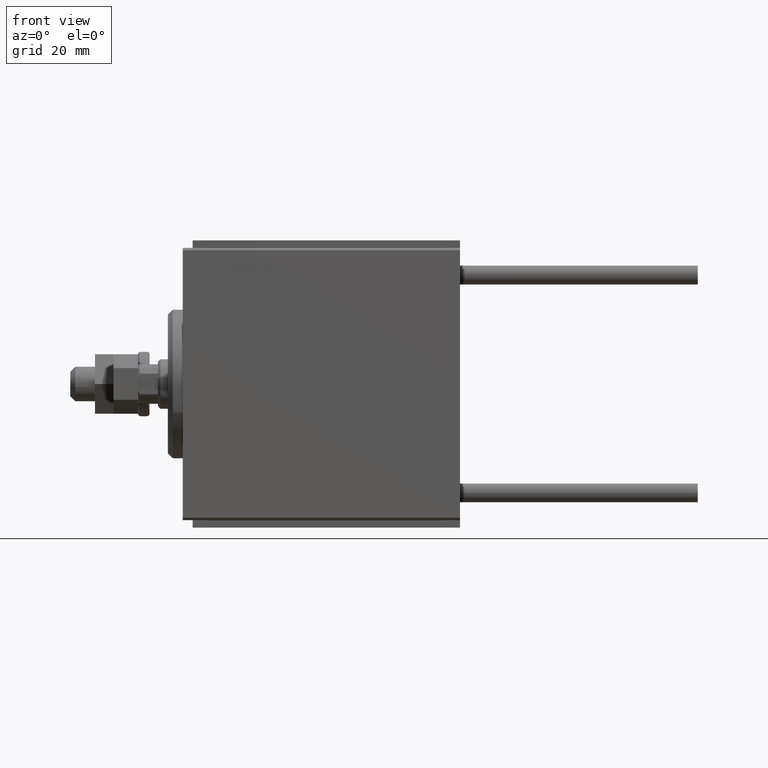
[diagram: clean part render]
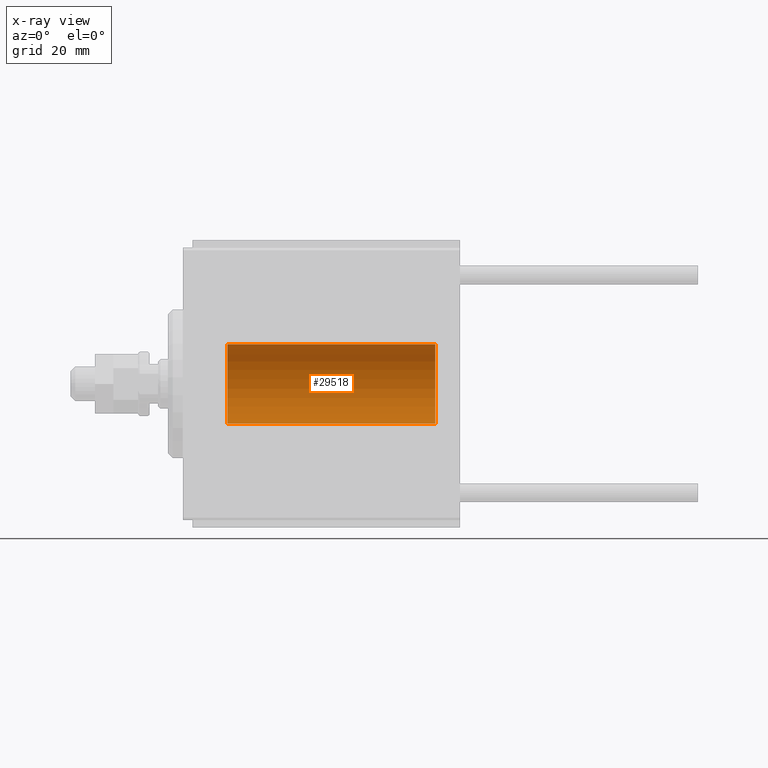
[diagram: x-ray — body ghosted, one internal face saturated and labeled with its STEP entity id]
A machine part, front view, then the same camera in x-ray: the body is ghosted and one INTERNAL B-rep face — a face not visible from any outside direction — is saturated and labeled: STEP entity #29518.
In plain terms, the highlighted cylindrical surface (partial cylindrical patch) has radius 8 mm, axis along (-1, -0, -0).
Its self-contained STEP definition (entity closure, byte-faithful):
#1079 = CARTESIAN_POINT ( 'NONE',  ( 51.00000000000000000, 0.000000000000000000, 0.000000000000000000 ) ) ;
#2206 = DIRECTION ( 'NONE',  ( -1.000000000000000000, -0.000000000000000000, -0.000000000000000000 ) ) ;
#3121 = AXIS2_PLACEMENT_3D ( 'NONE', #28046, #19917, #15869 ) ;
#3944 = CIRCLE ( 'NONE', #3121, 7.999999999999998224 ) ;
#7300 = ORIENTED_EDGE ( 'NONE', *, *, #49133, .F. ) ;
#8465 = FACE_OUTER_BOUND ( 'NONE', #44470, .T. ) ;
#9256 = CARTESIAN_POINT ( 'NONE',  ( 51.00000000000000000, 9.797174393178823685E-16, -7.999999999999998224 ) ) ;
#11280 = VECTOR ( 'NONE', #2206, 1000.000000000000000 ) ;
#11738 = CARTESIAN_POINT ( 'NONE',  ( 51.00000000000000000, 9.797174393178823685E-16, -7.999999999999998224 ) ) ;
#12274 = CYLINDRICAL_SURFACE ( 'NONE', #33010, 7.999999999999998224 ) ;
#12548 = DIRECTION ( 'NONE',  ( -1.000000000000000000, -0.000000000000000000, -0.000000000000000000 ) ) ;
#14824 = VERTEX_POINT ( 'NONE', #50093 ) ;
#15869 = DIRECTION ( 'NONE',  ( 0.000000000000000000, 0.000000000000000000, 1.000000000000000000 ) ) ;
#18187 = LINE ( 'NONE', #25296, #11280 ) ;
#19917 = DIRECTION ( 'NONE',  ( -1.000000000000000000, 0.000000000000000000, 0.000000000000000000 ) ) ;
#22483 = DIRECTION ( 'NONE',  ( -1.000000000000000000, 0.000000000000000000, 0.000000000000000000 ) ) ;
#24231 = CARTESIAN_POINT ( 'NONE',  ( 9.000000000000001776, 9.797174393178823685E-16, -7.999999999999998224 ) ) ;
#24366 = VERTEX_POINT ( 'NONE', #28724 ) ;
#25296 = CARTESIAN_POINT ( 'NONE',  ( 51.00000000000000000, 0.000000000000000000, 7.999999999999998224 ) ) ;
#28046 = CARTESIAN_POINT ( 'NONE',  ( 9.000000000000001776, 0.000000000000000000, 0.000000000000000000 ) ) ;
#28724 = CARTESIAN_POINT ( 'NONE',  ( 9.000000000000001776, 0.000000000000000000, 7.999999999999998224 ) ) ;
#29518 = ADVANCED_FACE ( 'NONE', ( #8465 ), #12274, .F. ) ;
#30457 = EDGE_CURVE ( 'NONE', #14824, #35243, #33840, .T. ) ;
#30734 = VECTOR ( 'NONE', #12548, 1000.000000000000000 ) ;
#31831 = LINE ( 'NONE', #9256, #30734 ) ;
#33010 = AXIS2_PLACEMENT_3D ( 'NONE', #1079, #35603, #39892 ) ;
#33840 = CIRCLE ( 'NONE', #42752, 7.999999999999998224 ) ;
#35243 = VERTEX_POINT ( 'NONE', #11738 ) ;
#35603 = DIRECTION ( 'NONE',  ( -1.000000000000000000, -0.000000000000000000, -0.000000000000000000 ) ) ;
#35782 = ORIENTED_EDGE ( 'NONE', *, *, #36103, .T. ) ;
#36103 = EDGE_CURVE ( 'NONE', #24366, #41655, #3944, .T. ) ;
#36762 = ORIENTED_EDGE ( 'NONE', *, *, #36894, .T. ) ;
#36894 = EDGE_CURVE ( 'NONE', #14824, #24366, #18187, .T. ) ;
#37951 = DIRECTION ( 'NONE',  ( 0.000000000000000000, 0.000000000000000000, 1.000000000000000000 ) ) ;
#39892 = DIRECTION ( 'NONE',  ( 0.000000000000000000, 0.000000000000000000, 1.000000000000000000 ) ) ;
#41655 = VERTEX_POINT ( 'NONE', #24231 ) ;
#41744 = CARTESIAN_POINT ( 'NONE',  ( 51.00000000000000000, 0.000000000000000000, 0.000000000000000000 ) ) ;
#42752 = AXIS2_PLACEMENT_3D ( 'NONE', #41744, #22483, #37951 ) ;
#44470 = EDGE_LOOP ( 'NONE', ( #7300, #46642, #36762, #35782 ) ) ;
#46642 = ORIENTED_EDGE ( 'NONE', *, *, #30457, .F. ) ;
#49133 = EDGE_CURVE ( 'NONE', #35243, #41655, #31831, .T. ) ;
#50093 = CARTESIAN_POINT ( 'NONE',  ( 51.00000000000000000, 0.000000000000000000, 7.999999999999998224 ) ) ;